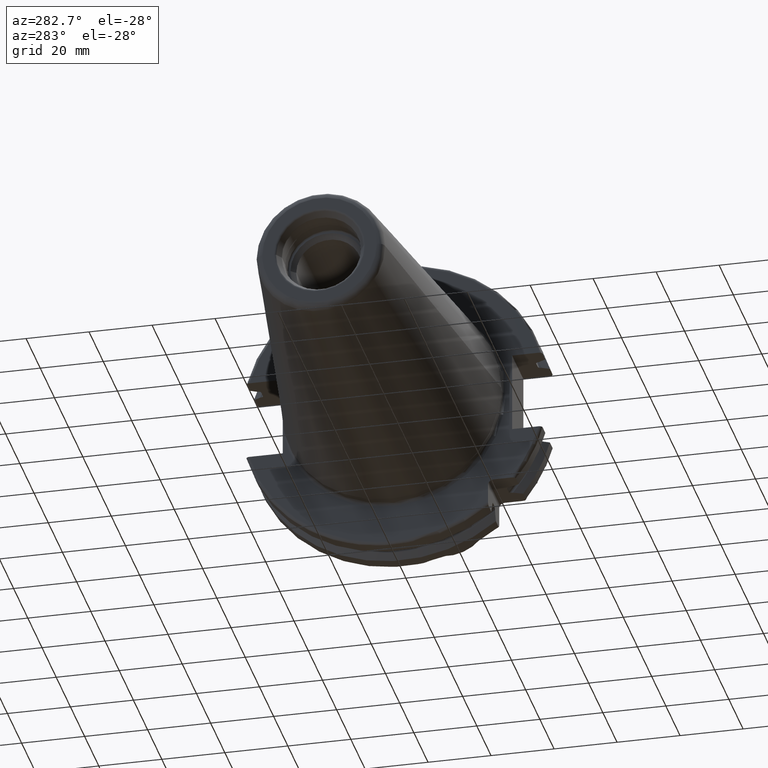
[diagram: clean part render]
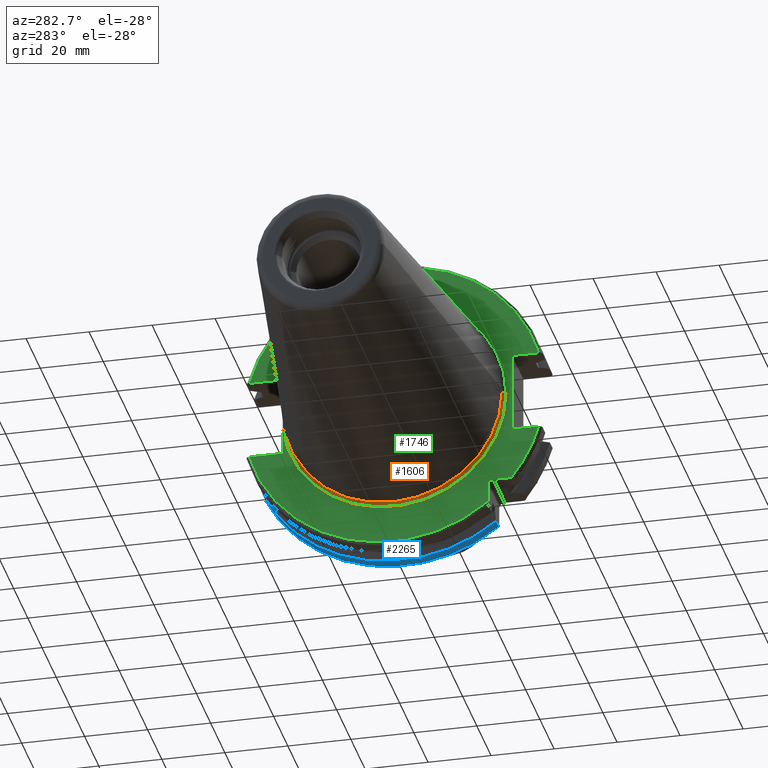
[diagram: same view with three faces highlighted in distinct colors, each labeled with its STEP entity id]
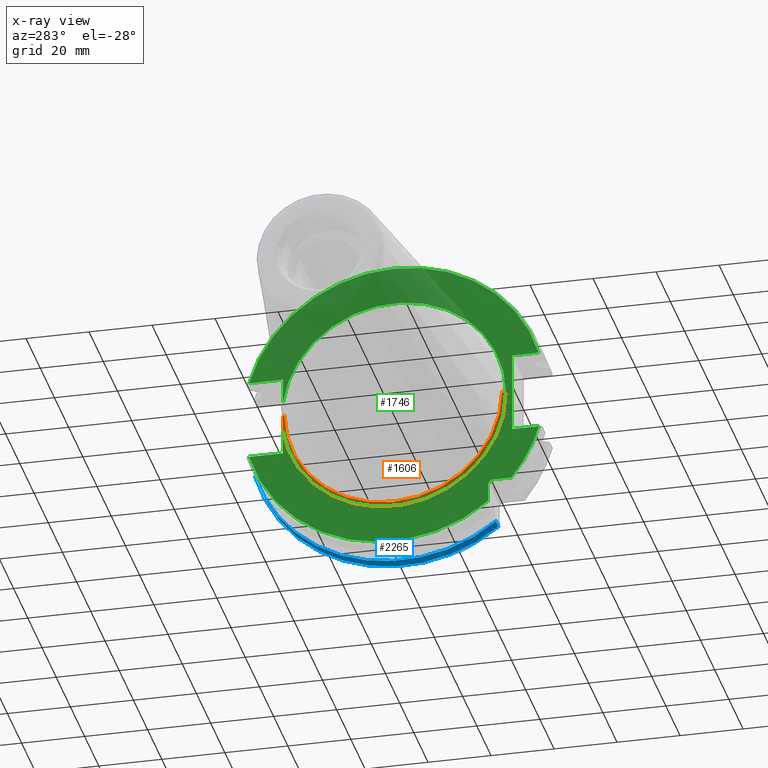
[diagram: x-ray of the same camera — body ghosted, the three highlighted faces saturated]
A machine part, auxiliary view with three faces highlighted in distinct colors.
The next image is the same camera in x-ray (body ghosted, the three faces saturated) — at least one of them is partly hidden behind the body in this view.
Their STEP definitions:

[orange] entity #1606 — the highlighted toroidal blend (fillet) surface has major radius 35.575 mm and minor (blend) radius 1 mm.
#91=CARTESIAN_POINT('',(2.2E0,0.E0,0.E0));
#92=DIRECTION('',(-1.E0,0.E0,0.E0));
#93=DIRECTION('',(0.E0,1.E0,0.E0));
#94=AXIS2_PLACEMENT_3D('',#91,#92,#93);
#96=CARTESIAN_POINT('',(3.161444226151E0,3.53E1,1.136082451233E-13));
#97=CARTESIAN_POINT('',(3.161444226151E0,3.53E1,-2.287557745853E-1));
#98=CARTESIAN_POINT('',(3.162734010751E0,3.53E1,-6.792530123044E-1));
#99=CARTESIAN_POINT('',(3.167877030309E0,3.53E1,-1.331895850106E0));
#100=CARTESIAN_POINT('',(3.175250793624E0,3.53E1,-1.967616454588E0));
#101=CARTESIAN_POINT('',(3.183670148061E0,3.53E1,-2.589717830169E0));
#102=CARTESIAN_POINT('',(3.191796133338E0,3.53E1,-3.202378106077E0));
#103=CARTESIAN_POINT('',(3.198127290791E0,3.53E1,-3.809054455619E0));
#104=CARTESIAN_POINT('',(3.2E0,3.53E1,-4.213157466434E0));
#105=CARTESIAN_POINT('',(3.2E0,3.53E1,-4.414818795828E0));
#107=CARTESIAN_POINT('',(2.2E0,3.5575E1,0.E0));
#108=DIRECTION('',(0.E0,0.E0,-1.E0));
#109=DIRECTION('',(9.614442261515E-1,-2.75E-1,0.E0));
#110=AXIS2_PLACEMENT_3D('',#107,#108,#109);
#112=CARTESIAN_POINT('',(2.2E0,-3.5575E1,0.E0));
#113=DIRECTION('',(0.E0,0.E0,1.E0));
#114=DIRECTION('',(1.E0,0.E0,0.E0));
#115=AXIS2_PLACEMENT_3D('',#112,#113,#114);
#117=CARTESIAN_POINT('',(3.2E0,0.E0,0.E0));
#118=DIRECTION('',(-1.E0,0.E0,0.E0));
#119=DIRECTION('',(0.E0,9.922698524245E-1,-1.240989120402E-1));
#120=AXIS2_PLACEMENT_3D('',#117,#118,#119);
#889=CARTESIAN_POINT('',(3.161444226151E0,3.53E1,1.136082451233E-13));
#1214=CARTESIAN_POINT('',(2.2E0,3.4575E1,0.E0));
#1216=VERTEX_POINT('',#1214);
#1218=CARTESIAN_POINT('',(3.2E0,-3.5575E1,0.E0));
#1219=CARTESIAN_POINT('',(2.2E0,-3.4575E1,0.E0));
#1220=VERTEX_POINT('',#1218);
#1221=VERTEX_POINT('',#1219);
#1358=CARTESIAN_POINT('',(3.2E0,3.53E1,-4.414818795828E0));
#1360=VERTEX_POINT('',#1358);
#1380=VERTEX_POINT('',#889);
#1590=CARTESIAN_POINT('',(2.2E0,0.E0,0.E0));
#1591=DIRECTION('',(1.E0,0.E0,0.E0));
#1592=DIRECTION('',(0.E0,-1.E0,0.E0));
#1593=AXIS2_PLACEMENT_3D('',#1590,#1591,#1592);
#1594=TOROIDAL_SURFACE('',#1593,3.5575E1,1.E0);
#1596=ORIENTED_EDGE('',*,*,#1595,.F.);
#1598=ORIENTED_EDGE('',*,*,#1597,.T.);
#1599=ORIENTED_EDGE('',*,*,#1585,.T.);
#1601=ORIENTED_EDGE('',*,*,#1600,.F.);
#1603=ORIENTED_EDGE('',*,*,#1602,.F.);
#1604=EDGE_LOOP('',(#1596,#1598,#1599,#1601,#1603));
#1605=FACE_OUTER_BOUND('',#1604,.F.);
#1606=ADVANCED_FACE('',(#1605),#1594,.F.);
#95=CIRCLE('',#94,3.4575E1);
#106=B_SPLINE_CURVE_WITH_KNOTS('',3,(#96,#97,#98,#99,#100,#101,#102,#103,#104,
#105),.UNSPECIFIED.,.F.,.F.,(4,1,1,1,1,1,1,4),(0.E0,1.428571428571E-1,
2.857142857143E-1,4.285714285714E-1,5.714285714286E-1,7.142857142857E-1,
8.571428571429E-1,1.E0),.UNSPECIFIED.);
#111=CIRCLE('',#110,1.E0);
#116=CIRCLE('',#115,1.E0);
#121=CIRCLE('',#120,3.5575E1);
#1585=EDGE_CURVE('',#1216,#1221,#95,.T.);
#1595=EDGE_CURVE('',#1380,#1360,#106,.T.);
#1597=EDGE_CURVE('',#1380,#1216,#111,.T.);
#1600=EDGE_CURVE('',#1220,#1221,#116,.T.);
#1602=EDGE_CURVE('',#1360,#1220,#121,.T.);

[blue] entity #2265 — the highlighted cylindrical surface (partial cylindrical patch) has radius 48.7375 mm, axis along (1, 0, 0).
#736=DIRECTION('',(1.E0,0.E0,0.E0));
#737=VECTOR('',#736,3.634621614173E0);
#738=CARTESIAN_POINT('',(1.441537838583E1,4.699929686974E1,-1.29E1));
#739=LINE('',#738,#737);
#740=CARTESIAN_POINT('',(1.441537838583E1,0.E0,0.E0));
#741=DIRECTION('',(1.E0,0.E0,0.E0));
#742=DIRECTION('',(0.E0,-6.124647345473E-1,-7.904979120376E-1));
#743=AXIS2_PLACEMENT_3D('',#740,#741,#742);
#745=DIRECTION('',(1.E0,0.E0,0.E0));
#746=VECTOR('',#745,3.634621614173E0);
#747=CARTESIAN_POINT('',(1.441537838583E1,-2.985E1,-3.852689198793E1));
#748=LINE('',#747,#746);
#749=CARTESIAN_POINT('',(1.805E1,0.E0,0.E0));
#750=DIRECTION('',(-1.E0,0.E0,0.E0));
#751=DIRECTION('',(0.E0,9.643354064066E-1,-2.646832521159E-1));
#752=AXIS2_PLACEMENT_3D('',#749,#750,#751);
#790=CARTESIAN_POINT('',(1.441537838583E1,4.699929686974E1,-1.29E1));
#802=CARTESIAN_POINT('',(1.441537838583E1,-2.985E1,-3.852689198793E1));
#1324=VERTEX_POINT('',#790);
#1374=CARTESIAN_POINT('',(1.805E1,4.699929686974E1,-1.29E1));
#1375=VERTEX_POINT('',#1374);
#1399=CARTESIAN_POINT('',(1.805E1,-2.985E1,-3.852689198793E1));
#1400=VERTEX_POINT('',#1399);
#1424=VERTEX_POINT('',#802);
#2252=CARTESIAN_POINT('',(-1.076325E2,0.E0,0.E0));
#2253=DIRECTION('',(1.E0,0.E0,0.E0));
#2254=DIRECTION('',(0.E0,-1.E0,0.E0));
#2255=AXIS2_PLACEMENT_3D('',#2252,#2253,#2254);
#2256=CYLINDRICAL_SURFACE('',#2255,4.87375E1);
#2257=ORIENTED_EDGE('',*,*,#1825,.F.);
#2259=ORIENTED_EDGE('',*,*,#2258,.F.);
#2260=ORIENTED_EDGE('',*,*,#1675,.T.);
#2262=ORIENTED_EDGE('',*,*,#2261,.F.);
#2263=EDGE_LOOP('',(#2257,#2259,#2260,#2262));
#2264=FACE_OUTER_BOUND('',#2263,.F.);
#2265=ADVANCED_FACE('',(#2264),#2256,.T.);
#744=CIRCLE('',#743,4.87375E1);
#753=CIRCLE('',#752,4.87375E1);
#1675=EDGE_CURVE('',#1424,#1400,#748,.T.);
#1825=EDGE_CURVE('',#1324,#1375,#739,.T.);
#2258=EDGE_CURVE('',#1424,#1324,#744,.T.);
#2261=EDGE_CURVE('',#1375,#1400,#753,.T.);

[green] entity #1746 — the highlighted planar face has unit normal (1, 0, 0).
#117=CARTESIAN_POINT('',(3.2E0,0.E0,0.E0));
#118=DIRECTION('',(-1.E0,0.E0,0.E0));
#119=DIRECTION('',(0.E0,9.922698524245E-1,-1.240989120402E-1));
#120=AXIS2_PLACEMENT_3D('',#117,#118,#119);
#177=CARTESIAN_POINT('',(3.2E0,-3.16E1,-3.16E1));
#178=DIRECTION('',(1.E0,0.E0,0.E0));
#179=DIRECTION('',(0.E0,1.E0,0.E0));
#180=AXIS2_PLACEMENT_3D('',#177,#178,#179);
#182=DIRECTION('',(0.E0,-1.E0,0.E0));
#183=VECTOR('',#182,5.653810627237E0);
#184=CARTESIAN_POINT('',(3.2E0,-3.16E1,-2.985E1));
#185=LINE('',#184,#183);
#186=DIRECTION('',(0.E0,0.E0,1.E0));
#187=VECTOR('',#186,5.653810627237E0);
#188=CARTESIAN_POINT('',(3.2E0,-2.985E1,-3.725381062724E1));
#189=LINE('',#188,#187);
#190=CARTESIAN_POINT('',(3.2E0,0.E0,0.E0));
#191=DIRECTION('',(-1.E0,0.E0,0.E0));
#192=DIRECTION('',(0.E0,9.627964123359E-1,-2.702278083268E-1));
#193=AXIS2_PLACEMENT_3D('',#190,#191,#192);
#195=DIRECTION('',(0.E0,-1.E0,0.E0));
#196=VECTOR('',#195,1.066149373389E1);
#197=CARTESIAN_POINT('',(3.2E0,4.596149373389E1,-1.29E1));
#198=LINE('',#197,#196);
#199=DIRECTION('',(0.E0,0.E0,-1.E0));
#200=VECTOR('',#199,8.485181204172E0);
#201=CARTESIAN_POINT('',(3.2E0,3.53E1,-4.414818795828E0));
#202=LINE('',#201,#200);
#203=DIRECTION('',(0.E0,0.E0,-1.E0));
#204=VECTOR('',#203,8.485181204172E0);
#205=CARTESIAN_POINT('',(3.2E0,3.53E1,1.29E1));
#206=LINE('',#205,#204);
#207=DIRECTION('',(0.E0,-1.E0,0.E0));
#208=VECTOR('',#207,1.066149373389E1);
#209=CARTESIAN_POINT('',(3.2E0,4.596149373389E1,1.29E1));
#210=LINE('',#209,#208);
#211=CARTESIAN_POINT('',(3.2E0,0.E0,0.E0));
#212=DIRECTION('',(1.E0,0.E0,0.E0));
#213=DIRECTION('',(0.E0,9.627964123359E-1,2.702278083268E-1));
#214=AXIS2_PLACEMENT_3D('',#211,#212,#213);
#216=DIRECTION('',(0.E0,1.E0,0.E0));
#217=VECTOR('',#216,8.461493733886E0);
#218=CARTESIAN_POINT('',(3.2E0,-4.596149373389E1,1.29E1));
#219=LINE('',#218,#217);
#220=DIRECTION('',(0.E0,0.E0,1.E0));
#221=VECTOR('',#220,2.58E1);
#222=CARTESIAN_POINT('',(3.2E0,-3.75E1,-1.29E1));
#223=LINE('',#222,#221);
#224=DIRECTION('',(0.E0,1.E0,0.E0));
#225=VECTOR('',#224,8.461493733886E0);
#226=CARTESIAN_POINT('',(3.2E0,-4.596149373389E1,-1.29E1));
#227=LINE('',#226,#225);
#228=CARTESIAN_POINT('',(3.2E0,0.E0,0.E0));
#229=DIRECTION('',(-1.E0,0.E0,0.E0));
#230=DIRECTION('',(0.E0,-7.803888060170E-1,-6.252945797329E-1));
#231=AXIS2_PLACEMENT_3D('',#228,#229,#230);
#279=CARTESIAN_POINT('',(3.2E0,-3.725381062724E1,-2.985E1));
#891=CARTESIAN_POINT('',(3.2E0,0.E0,0.E0));
#892=DIRECTION('',(1.E0,0.E0,0.E0));
#893=DIRECTION('',(0.E0,9.922698524245E-1,1.240989120402E-1));
#894=AXIS2_PLACEMENT_3D('',#891,#892,#893);
#1218=CARTESIAN_POINT('',(3.2E0,-3.5575E1,0.E0));
#1220=VERTEX_POINT('',#1218);
#1352=CARTESIAN_POINT('',(3.2E0,4.596149373389E1,1.29E1));
#1353=CARTESIAN_POINT('',(3.2E0,3.53E1,1.29E1));
#1354=VERTEX_POINT('',#1352);
#1355=VERTEX_POINT('',#1353);
#1356=CARTESIAN_POINT('',(3.2E0,3.53E1,4.414818795828E0));
#1357=VERTEX_POINT('',#1356);
#1358=CARTESIAN_POINT('',(3.2E0,3.53E1,-4.414818795828E0));
#1359=CARTESIAN_POINT('',(3.2E0,3.53E1,-1.29E1));
#1360=VERTEX_POINT('',#1358);
#1361=VERTEX_POINT('',#1359);
#1362=CARTESIAN_POINT('',(3.2E0,4.596149373389E1,-1.29E1));
#1363=VERTEX_POINT('',#1362);
#1364=CARTESIAN_POINT('',(3.2E0,-4.596149373389E1,-1.29E1));
#1365=CARTESIAN_POINT('',(3.2E0,-3.75E1,-1.29E1));
#1366=VERTEX_POINT('',#1364);
#1367=VERTEX_POINT('',#1365);
#1368=CARTESIAN_POINT('',(3.2E0,-3.75E1,1.29E1));
#1369=VERTEX_POINT('',#1368);
#1370=CARTESIAN_POINT('',(3.2E0,-4.596149373389E1,1.29E1));
#1371=VERTEX_POINT('',#1370);
#1403=CARTESIAN_POINT('',(3.2E0,-2.985E1,-3.725381062724E1));
#1404=VERTEX_POINT('',#1403);
#1409=CARTESIAN_POINT('',(3.2E0,-2.985E1,-3.16E1));
#1410=CARTESIAN_POINT('',(3.2E0,-3.16E1,-2.985E1));
#1411=VERTEX_POINT('',#1409);
#1412=VERTEX_POINT('',#1410);
#1431=VERTEX_POINT('',#279);
#1714=CARTESIAN_POINT('',(3.2E0,0.E0,0.E0));
#1715=DIRECTION('',(1.E0,0.E0,0.E0));
#1716=DIRECTION('',(0.E0,-1.E0,0.E0));
#1717=AXIS2_PLACEMENT_3D('',#1714,#1715,#1716);
#1718=PLANE('',#1717);
#1720=ORIENTED_EDGE('',*,*,#1719,.F.);
#1721=ORIENTED_EDGE('',*,*,#1707,.F.);
#1722=ORIENTED_EDGE('',*,*,#1695,.F.);
#1724=ORIENTED_EDGE('',*,*,#1723,.F.);
#1726=ORIENTED_EDGE('',*,*,#1725,.T.);
#1727=ORIENTED_EDGE('',*,*,#1621,.F.);
#1728=ORIENTED_EDGE('',*,*,#1602,.T.);
#1730=ORIENTED_EDGE('',*,*,#1729,.F.);
#1731=ORIENTED_EDGE('',*,*,#1616,.F.);
#1733=ORIENTED_EDGE('',*,*,#1732,.F.);
#1735=ORIENTED_EDGE('',*,*,#1734,.T.);
#1737=ORIENTED_EDGE('',*,*,#1736,.T.);
#1739=ORIENTED_EDGE('',*,*,#1738,.F.);
#1741=ORIENTED_EDGE('',*,*,#1740,.F.);
#1743=ORIENTED_EDGE('',*,*,#1742,.F.);
#1744=EDGE_LOOP('',(#1720,#1721,#1722,#1724,#1726,#1727,#1728,#1730,#1731,#1733,
#1735,#1737,#1739,#1741,#1743));
#1745=FACE_OUTER_BOUND('',#1744,.F.);
#1746=ADVANCED_FACE('',(#1745),#1718,.F.);
#121=CIRCLE('',#120,3.5575E1);
#181=CIRCLE('',#180,1.75E0);
#194=CIRCLE('',#193,4.77375E1);
#215=CIRCLE('',#214,4.77375E1);
#232=CIRCLE('',#231,4.77375E1);
#895=CIRCLE('',#894,3.5575E1);
#1602=EDGE_CURVE('',#1360,#1220,#121,.T.);
#1616=EDGE_CURVE('',#1355,#1357,#206,.T.);
#1621=EDGE_CURVE('',#1360,#1361,#202,.T.);
#1695=EDGE_CURVE('',#1404,#1411,#189,.T.);
#1707=EDGE_CURVE('',#1411,#1412,#181,.T.);
#1719=EDGE_CURVE('',#1412,#1431,#185,.T.);
#1723=EDGE_CURVE('',#1363,#1404,#194,.T.);
#1725=EDGE_CURVE('',#1363,#1361,#198,.T.);
#1729=EDGE_CURVE('',#1357,#1220,#895,.T.);
#1732=EDGE_CURVE('',#1354,#1355,#210,.T.);
#1734=EDGE_CURVE('',#1354,#1371,#215,.T.);
#1736=EDGE_CURVE('',#1371,#1369,#219,.T.);
#1738=EDGE_CURVE('',#1367,#1369,#223,.T.);
#1740=EDGE_CURVE('',#1366,#1367,#227,.T.);
#1742=EDGE_CURVE('',#1431,#1366,#232,.T.);